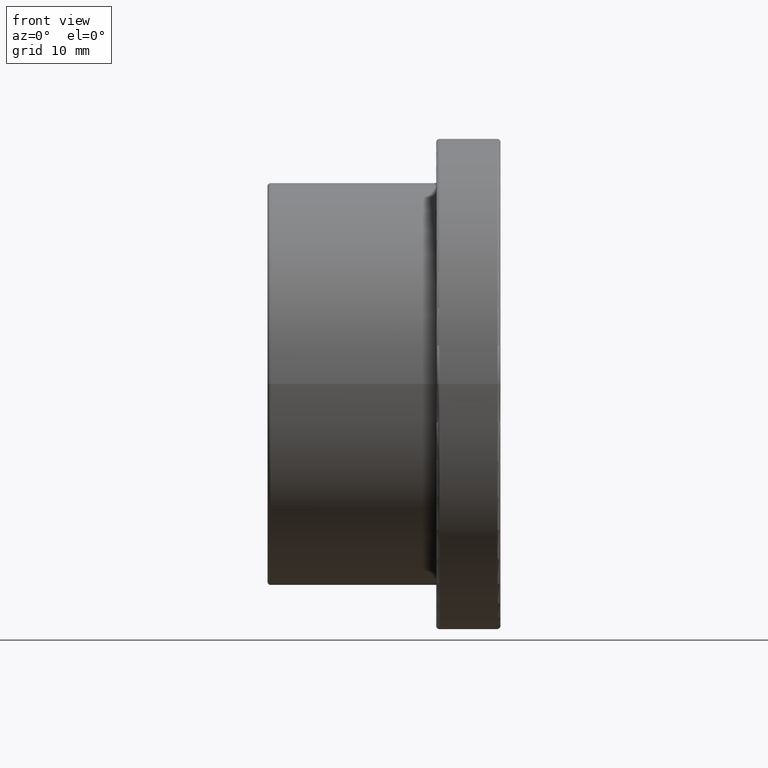
[diagram: clean part render]
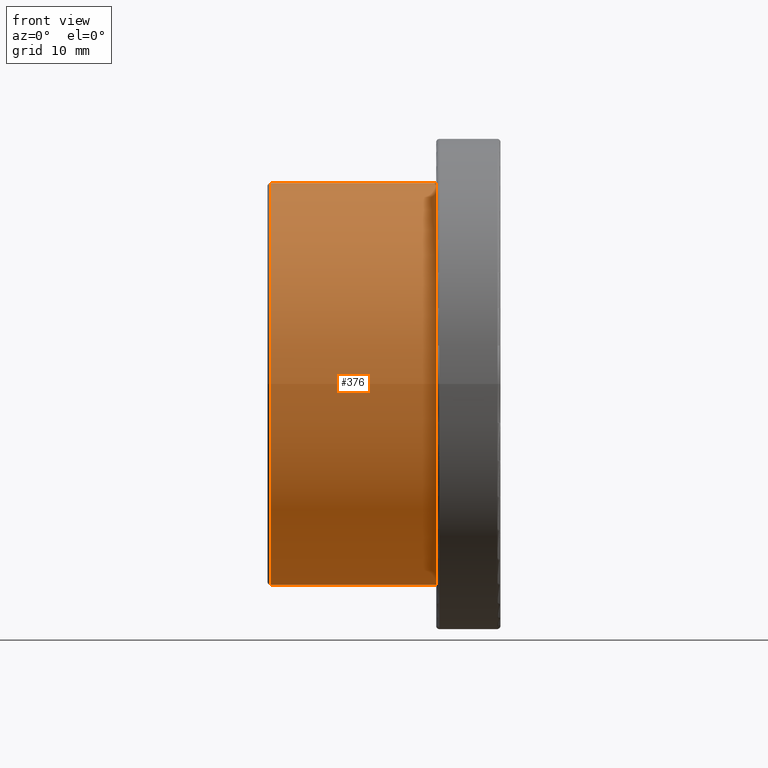
[diagram: same view with one face highlighted and labeled with its STEP entity id]
A machine part, front view. The second image highlights one B-rep face of the part: STEP entity #376.
In plain terms, the highlighted cylindrical surface (bore or boss wall) has radius 25 mm, axis along (-1, 0, 0).
Its self-contained STEP definition (entity closure, byte-faithful):
#23=CYLINDRICAL_SURFACE('',#444,25.);
#64=FACE_BOUND('',#162,.T.);
#97=FACE_OUTER_BOUND('',#161,.T.);
#161=EDGE_LOOP('',(#326));
#162=EDGE_LOOP('',(#327));
#196=CIRCLE('',#441,25.);
#197=CIRCLE('',#443,25.);
#229=VERTEX_POINT('',#673);
#230=VERTEX_POINT('',#676);
#262=EDGE_CURVE('',#229,#229,#196,.T.);
#263=EDGE_CURVE('',#230,#230,#197,.T.);
#326=ORIENTED_EDGE('',*,*,#262,.T.);
#327=ORIENTED_EDGE('',*,*,#263,.F.);
#376=ADVANCED_FACE('',(#97,#64),#23,.T.);
#441=AXIS2_PLACEMENT_3D('',#674,#570,#571);
#443=AXIS2_PLACEMENT_3D('',#677,#574,#575);
#444=AXIS2_PLACEMENT_3D('',#678,#576,#577);
#570=DIRECTION('center_axis',(-1.,0.,0.));
#571=DIRECTION('ref_axis',(0.,0.,1.));
#574=DIRECTION('center_axis',(-1.,0.,0.));
#575=DIRECTION('ref_axis',(0.,1.,6.12323399573677E-17));
#576=DIRECTION('center_axis',(-1.,0.,0.));
#577=DIRECTION('ref_axis',(0.,-1.,0.));
#673=CARTESIAN_POINT('',(21.,-25.,0.));
#674=CARTESIAN_POINT('Origin',(21.,0.,0.));
#676=CARTESIAN_POINT('',(0.4,-25.,1.53080849893419E-15));
#677=CARTESIAN_POINT('Origin',(0.4,0.,0.));
#678=CARTESIAN_POINT('Origin',(10.5,0.,0.));